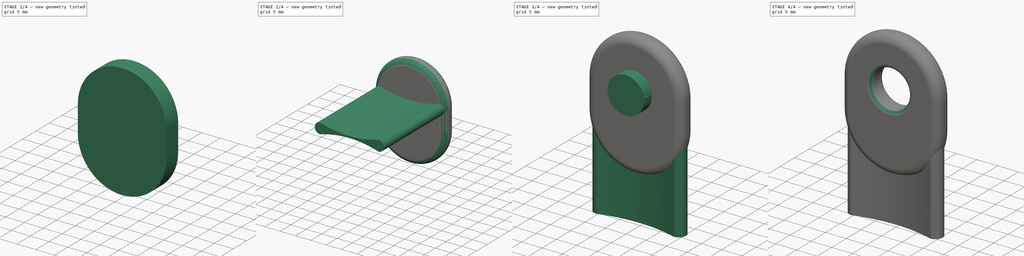
[diagram: build sequence overview — one tinted view per stage of 4, left to right]
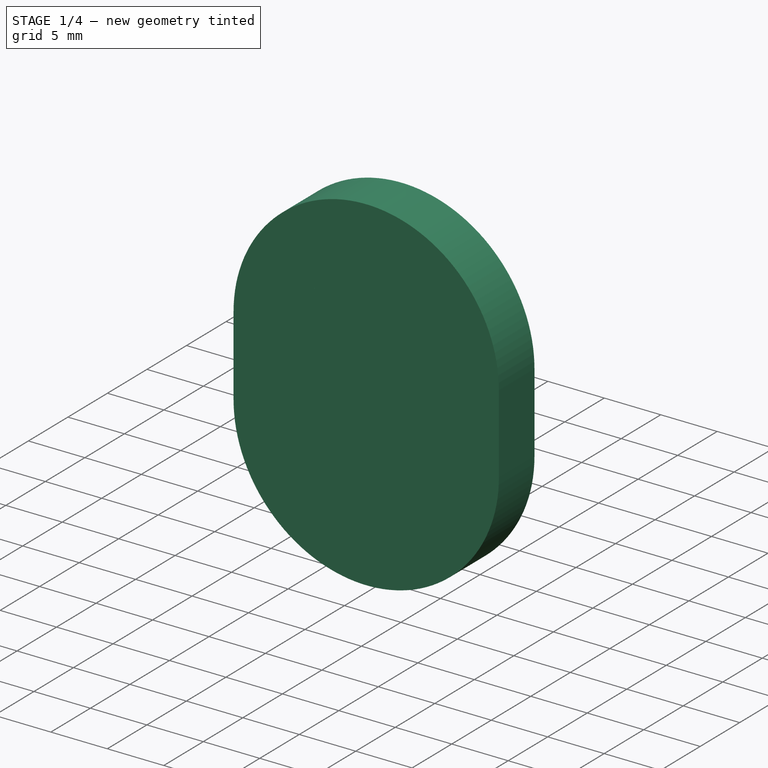
[diagram: stage 1 of 4 — iso view after this stage's code; geometry added in this stage tinted green]
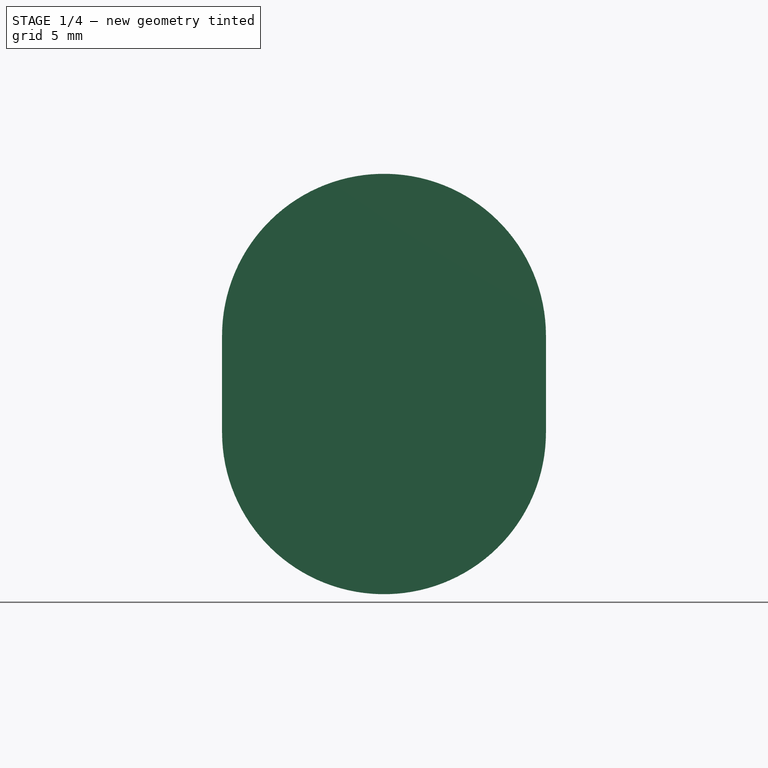
[diagram: stage 1 of 4 — front view after this stage's code; geometry added in this stage tinted green]
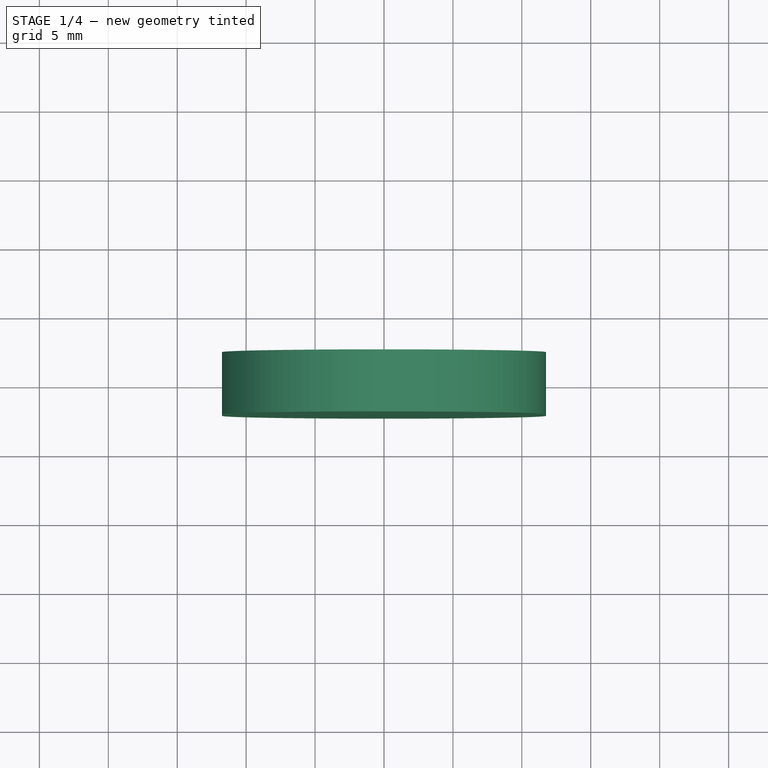
[diagram: stage 1 of 4 — top view after this stage's code; geometry added in this stage tinted green]
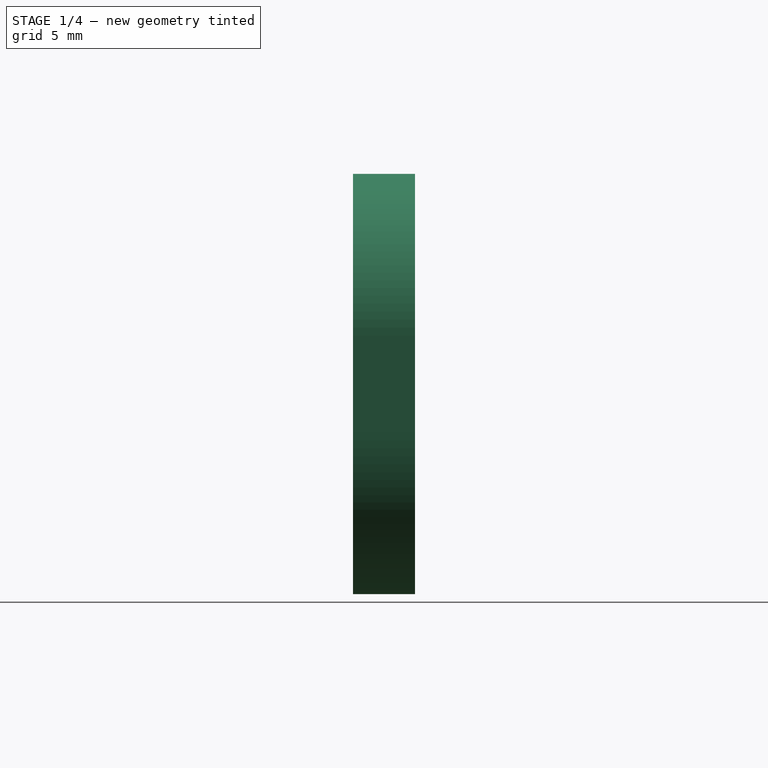
[diagram: stage 1 of 4 — right view after this stage's code; geometry added in this stage tinted green]
FCSTD DOCUMENT  (FreeCAD 0.18R16117 (Git))
Label: towel-dispenser-key
License: All rights reserved
LicenseURL: http://en.wikipedia.org/wiki/All_rights_reserved
objects: Part::Cylinder×3, Part::Fillet×3, Part::MultiFuse×2, App::Part×1, Sketcher::SketchObject×1, PartDesign::Pad×1, PartDesign::Body×1, Part::Box×1, Part::Cut×1
note: 14 computed .brp shape members not serialized (recipe doc carries the construction recipe); baked Part::Feature solids carry a one-line shape summary decoded from their .brp

FEATURE [PartDesign::Body] Body
  Group = -> [Sketch,Pad]
  Origin = -> Origin001
  Placement = pos=(0,0,0) rot=(1,0,0;1.5708rad)
  Tip = -> Pad
FEATURE [Part::Box] Box  label="Cube"
  AttacherType = Attacher::AttachEngine3D
  Height = 7
  Length = 23.5
  Placement = pos=(-11.75,-2.25,-7) rot=(0,0,1;0rad)
  Width = 4.5
FEATURE [Part::Cylinder] Cylinder
  Angle = 360
  AttacherType = Attacher::AttachEngine3D
  Height = 4.5
  Placement = pos=(0,2.25,0) rot=(1,0,0;1.5708rad)
  Radius = 11.75
FEATURE [Part::Cylinder] Cylinder001
  Angle = 360
  AttacherType = Attacher::AttachEngine3D
  Height = 4.5
  Placement = pos=(0,2.25,-7) rot=(1,0,0;1.5708rad)
  Radius = 11.75
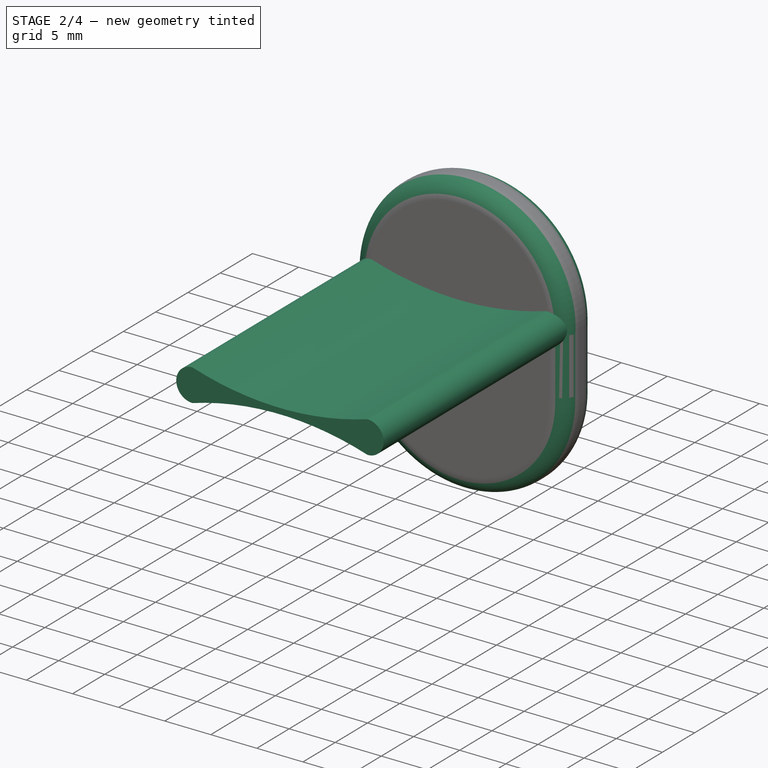
[diagram: stage 2 of 4 — iso view after this stage's code; geometry added in this stage tinted green]
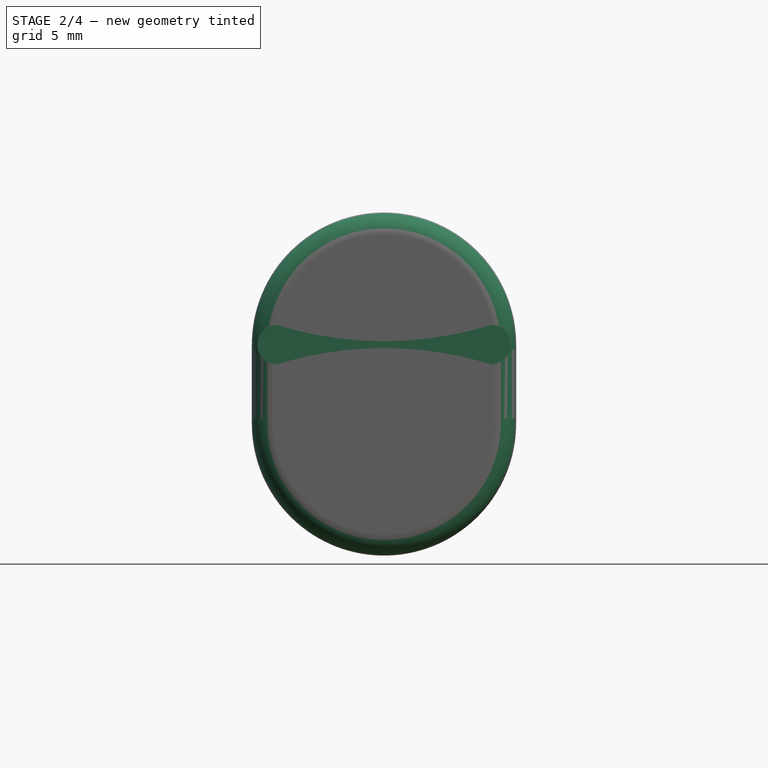
[diagram: stage 2 of 4 — front view after this stage's code; geometry added in this stage tinted green]
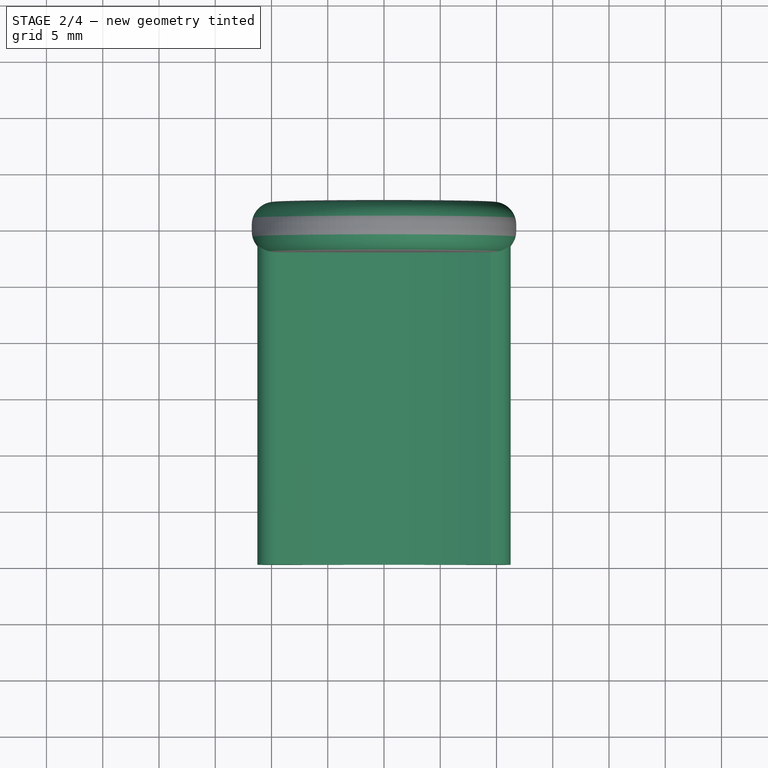
[diagram: stage 2 of 4 — top view after this stage's code; geometry added in this stage tinted green]
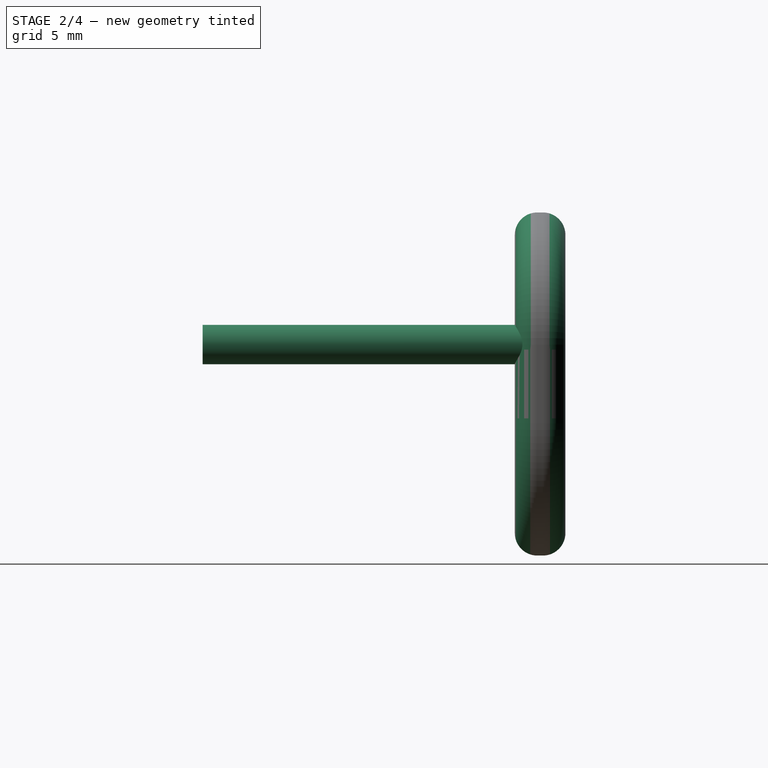
[diagram: stage 2 of 4 — right view after this stage's code; geometry added in this stage tinted green]
FEATURE [App::Part] Part
  Origin = -> Origin
FEATURE [Sketcher::SketchObject] Sketch
  MapMode = 5
  Placement = pos=(0,0,0) rot=(1,0,0;1.5708rad)
  Support = -> [XZ_Plane001]
  sketch-geometry (4):
    g0: ArcOfCircle CenterX=1.1e-15 CenterY=-32.3073 CenterZ=0 NormalX=0 NormalY=0 NormalZ=1 AngleXU=0 Radius=32 StartAngle=1.26938 EndAngle=1.87221
    g1: ArcOfCircle CenterX=3.2e-15 CenterY=32.3073 CenterZ=0 NormalX=0 NormalY=0 NormalZ=1 AngleXU=0 Radius=32 StartAngle=4.41097 EndAngle=5.01381
    g2: ArcOfCircle CenterX=9.5 CenterY=0 CenterZ=0 NormalX=0 NormalY=0 NormalZ=1 AngleXU=0 Radius=1.75 StartAngle=4.71239 EndAngle=7.85398
    g3: ArcOfCircle CenterX=-9.5 CenterY=1e-16 CenterZ=0 NormalX=0 NormalY=0 NormalZ=1 AngleXU=0 Radius=1.75 StartAngle=1.5708 EndAngle=4.71239
  constraints (13):
    c: Coincident(g1,g2)
    c: Coincident(g0,g2)
    c: Coincident(g1,g3)
    c: Symmetric(g1,g1,g-2)
    c: Symmetric(g0,g0,g-2)
    c: Symmetric(g1,g0,g-1)
    c: Coincident(g0,g3)
    c: DistanceY(g0,g1) = 3.5
    c: Radius(g3) = 1.75
    c: Radius(g1) = 32
    c: Radius(g0) = 32
    c: Radius(g2) = 1.75
    c: DistanceX(g3,g2) = 19
FEATURE [PartDesign::Pad] Pad
  Length = 30
  Length2 = 100
  Placement = pos=(0,0,0) rot=(1,0,0;1.5708rad)
  Profile = -> Sketch
  Type = 0
FEATURE [Part::MultiFuse] Fusion
  Shapes = -> [Box,Cylinder001,Cylinder]
FEATURE [Part::Fillet] Fillet
  Base = -> Fusion
  Edges = 8 edges r=2: [Edge1,Edge3,Edge7,Edge8,Edge12,Edge14,Edge24,Edge25]
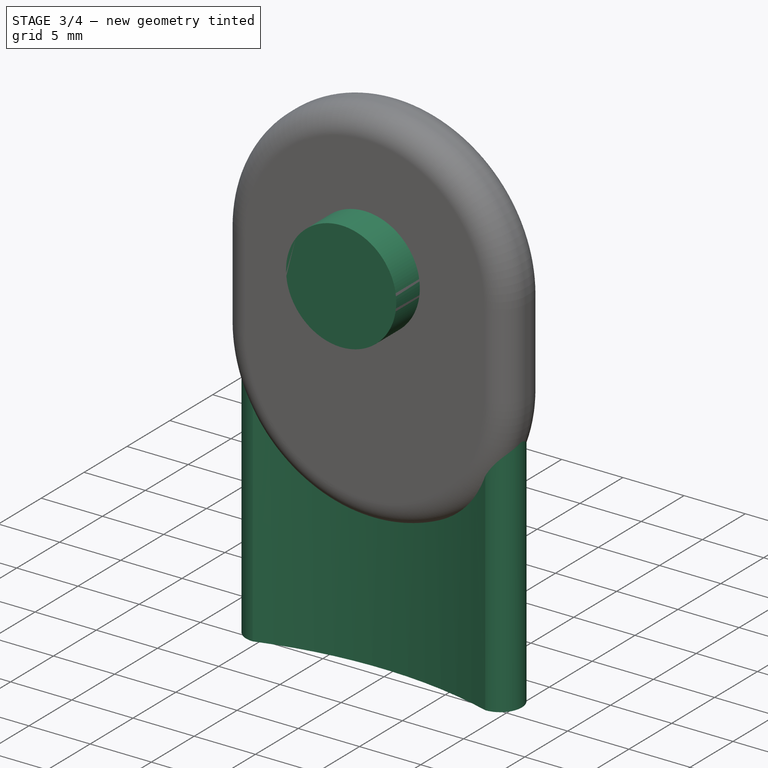
[diagram: stage 3 of 4 — iso view after this stage's code; geometry added in this stage tinted green]
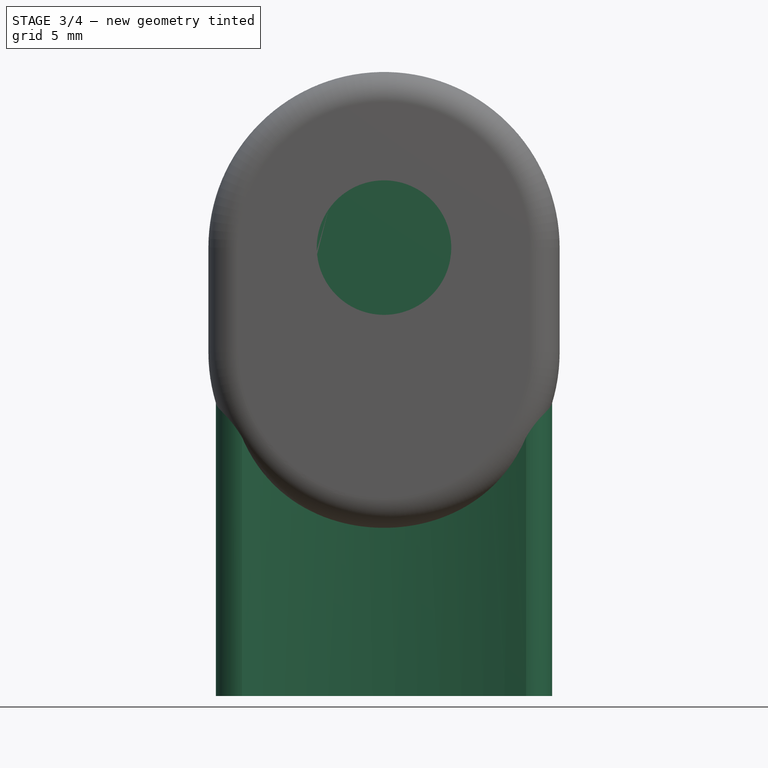
[diagram: stage 3 of 4 — front view after this stage's code; geometry added in this stage tinted green]
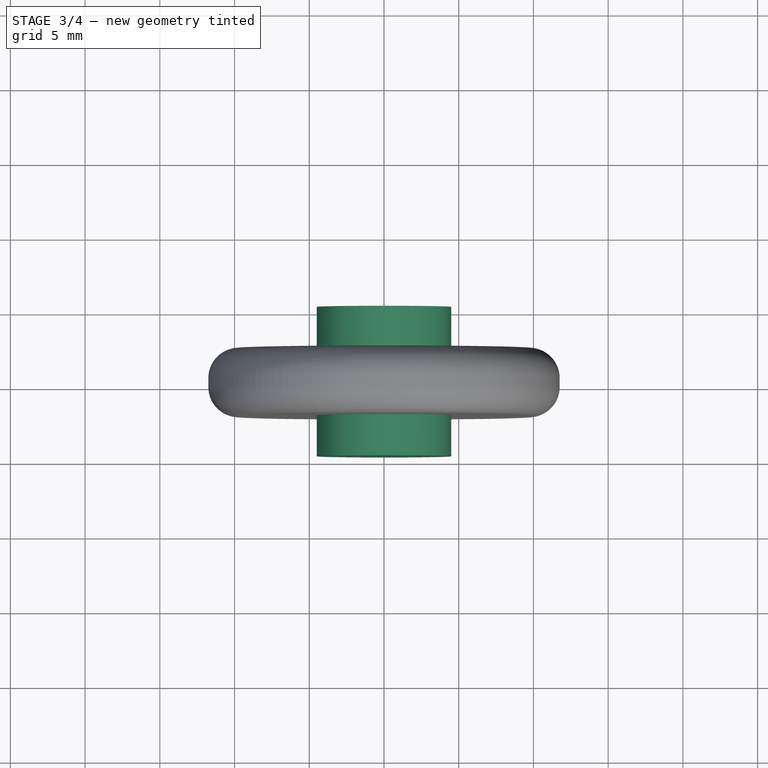
[diagram: stage 3 of 4 — top view after this stage's code; geometry added in this stage tinted green]
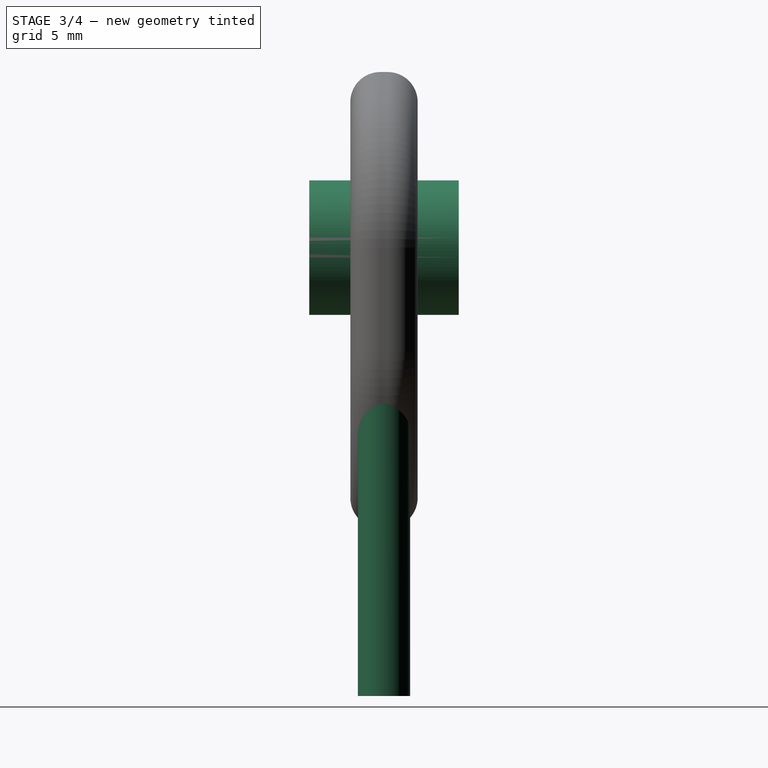
[diagram: stage 3 of 4 — right view after this stage's code; geometry added in this stage tinted green]
FEATURE [Part::Cylinder] Cylinder002
  Angle = 360
  AttacherType = Attacher::AttachEngine3D
  Height = 10
  Placement = pos=(0,5,0) rot=(1,0,0;1.5708rad)
  Radius = 4.5
FEATURE [Part::MultiFuse] Fusion001
  Shapes = -> [Body,Fillet]
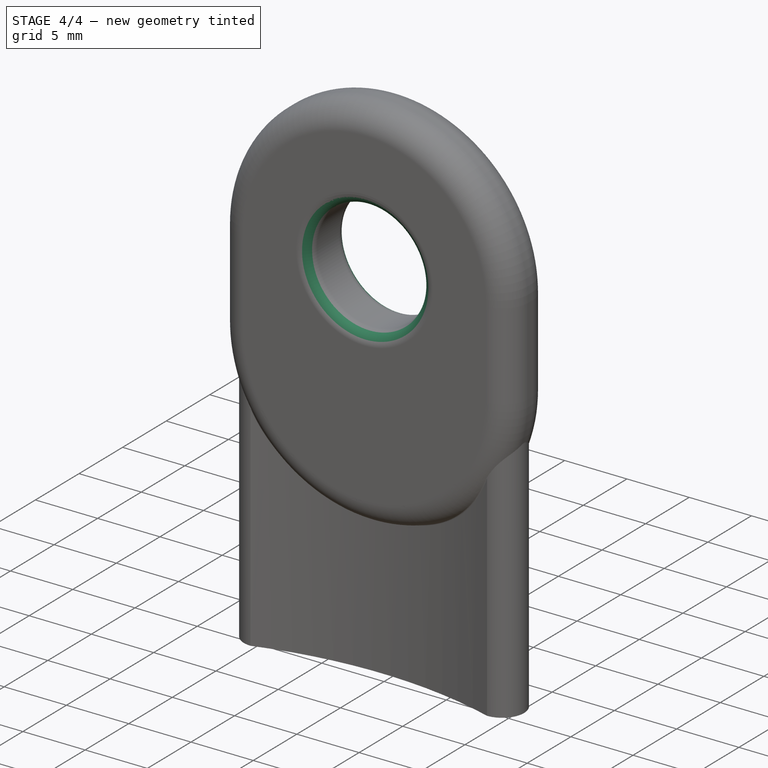
[diagram: stage 4 of 4 — iso view after this stage's code; geometry added in this stage tinted green]
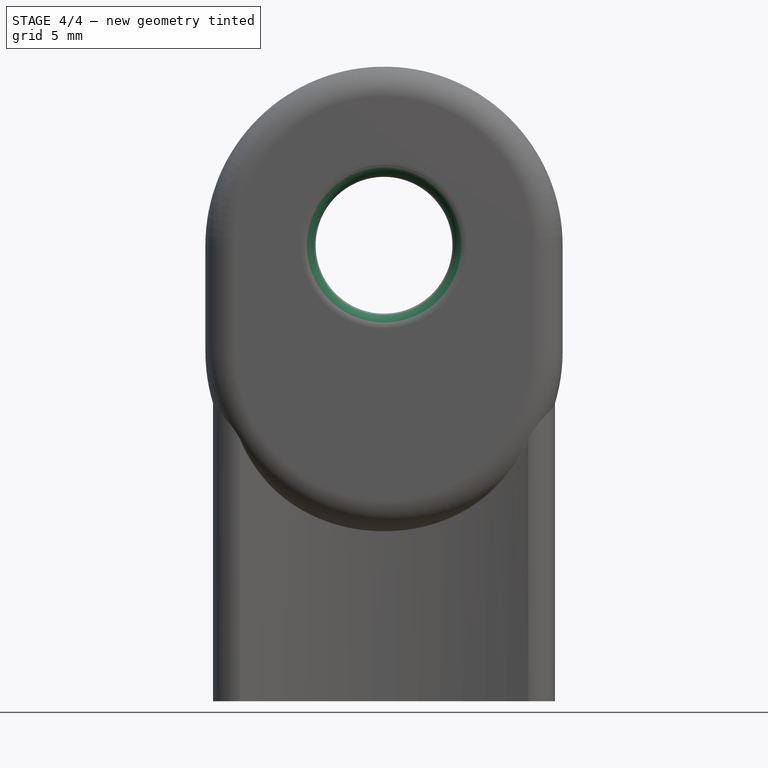
[diagram: stage 4 of 4 — front view after this stage's code; geometry added in this stage tinted green]
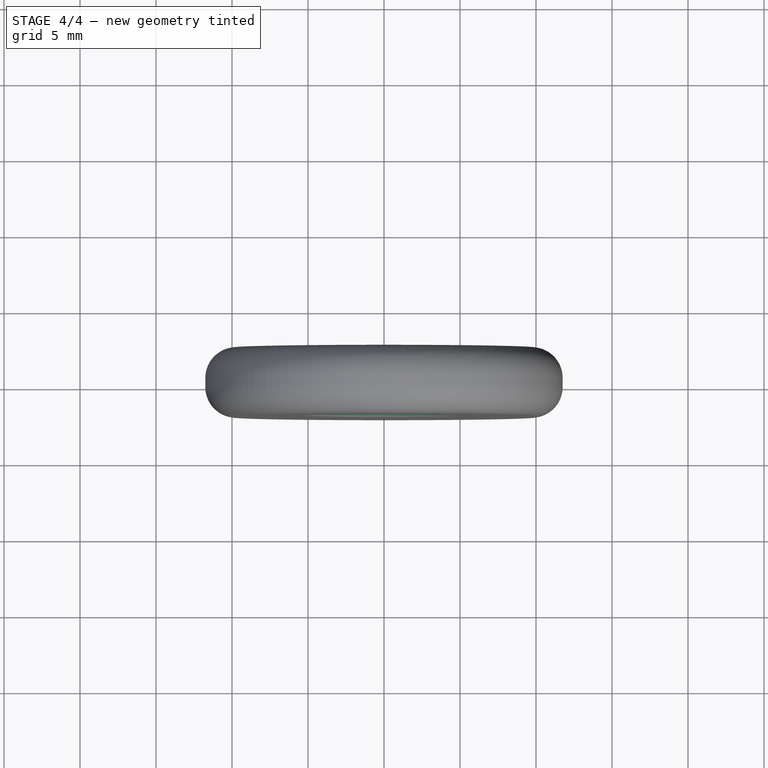
[diagram: stage 4 of 4 — top view after this stage's code; geometry added in this stage tinted green]
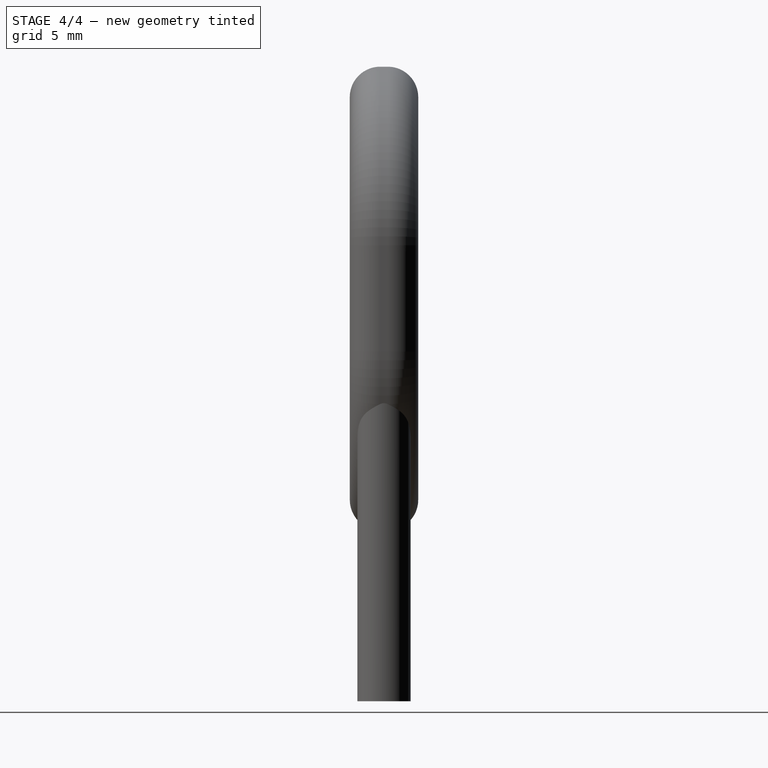
[diagram: stage 4 of 4 — right view after this stage's code; geometry added in this stage tinted green]
FEATURE [Part::Cut] Cut
  Base = -> Fusion001
  Tool = -> Cylinder002
FEATURE [Part::Fillet] Fillet001
  Base = -> Cut
  Edges = 4 edges r=1: [Edge69,Edge89,Edge92,Edge93]
FEATURE [Part::Fillet] Fillet002
  Base = -> Fillet001
  Edges = 2 edges r=0.1: [Edge87,Edge113]
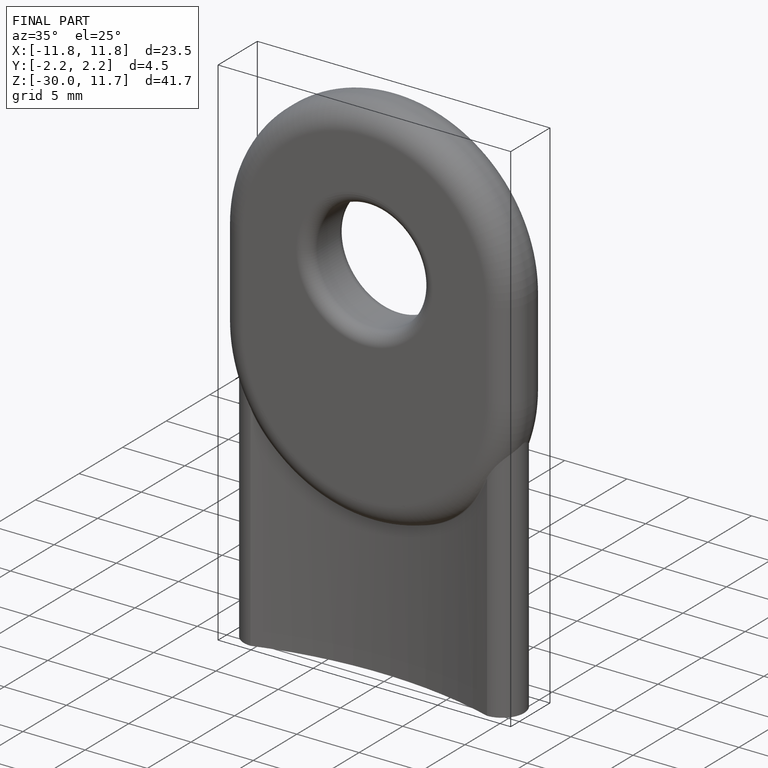
[diagram: finished part — iso view with bounding-box wireframe]
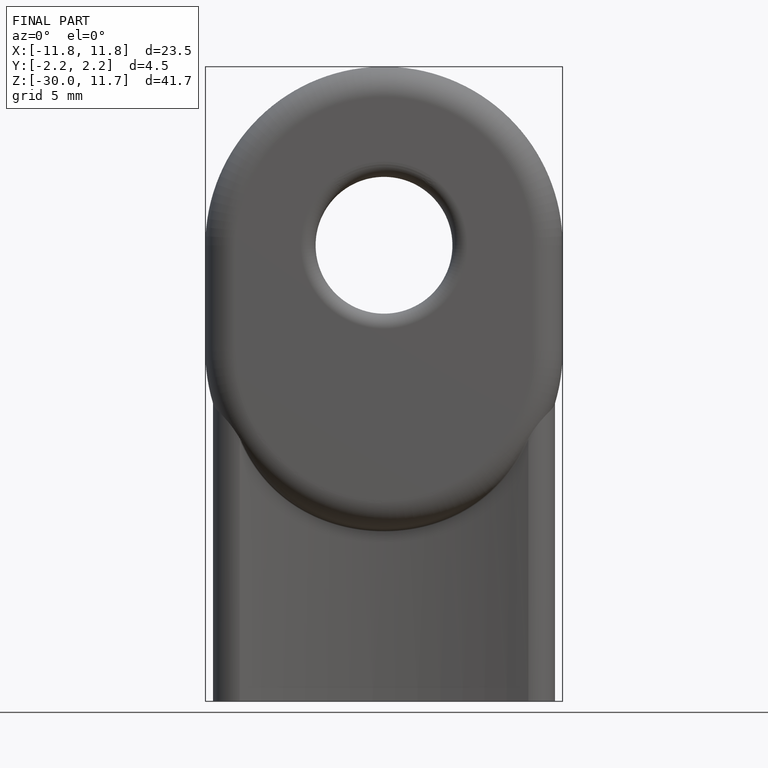
[diagram: finished part — front view with bounding-box wireframe]
